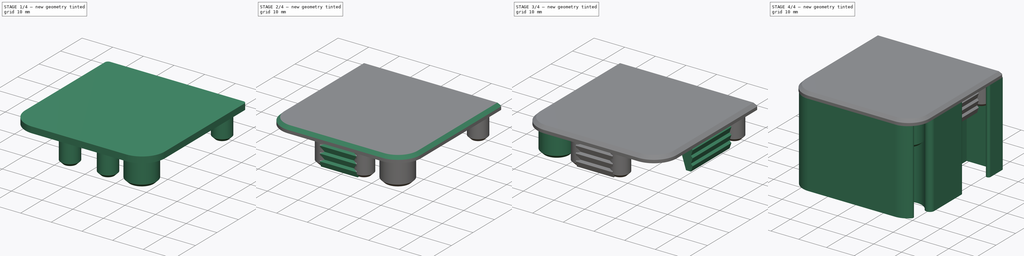
[diagram: build sequence overview — one tinted view per stage of 4, left to right]
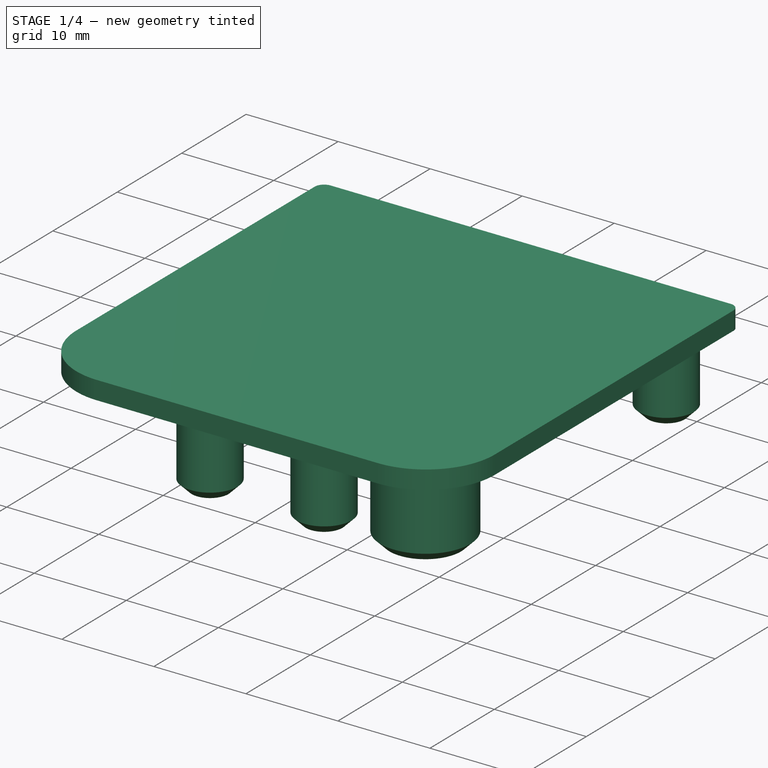
[diagram: stage 1 of 4 — iso view after this stage's code; geometry added in this stage tinted green]
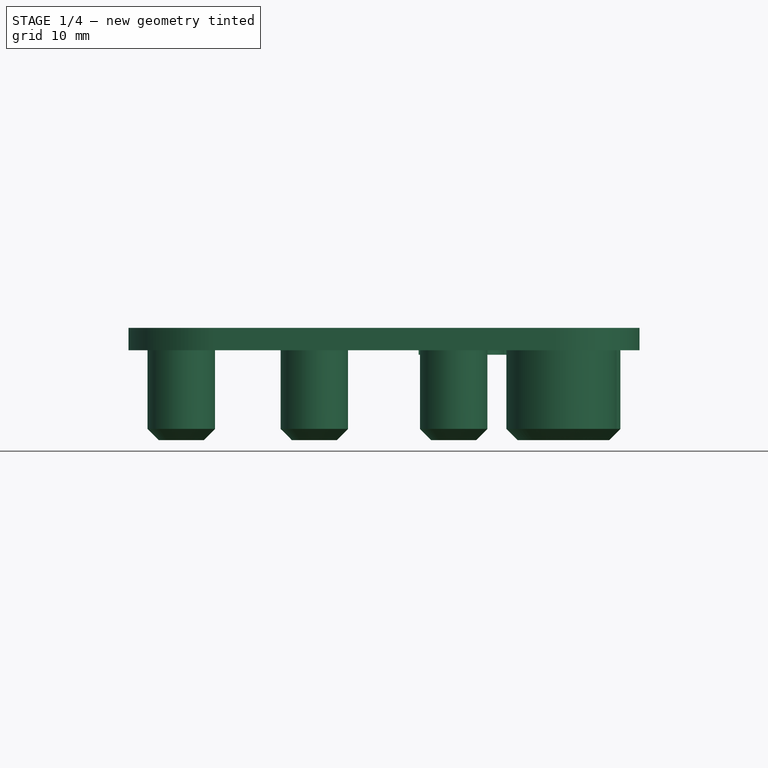
[diagram: stage 1 of 4 — front view after this stage's code; geometry added in this stage tinted green]
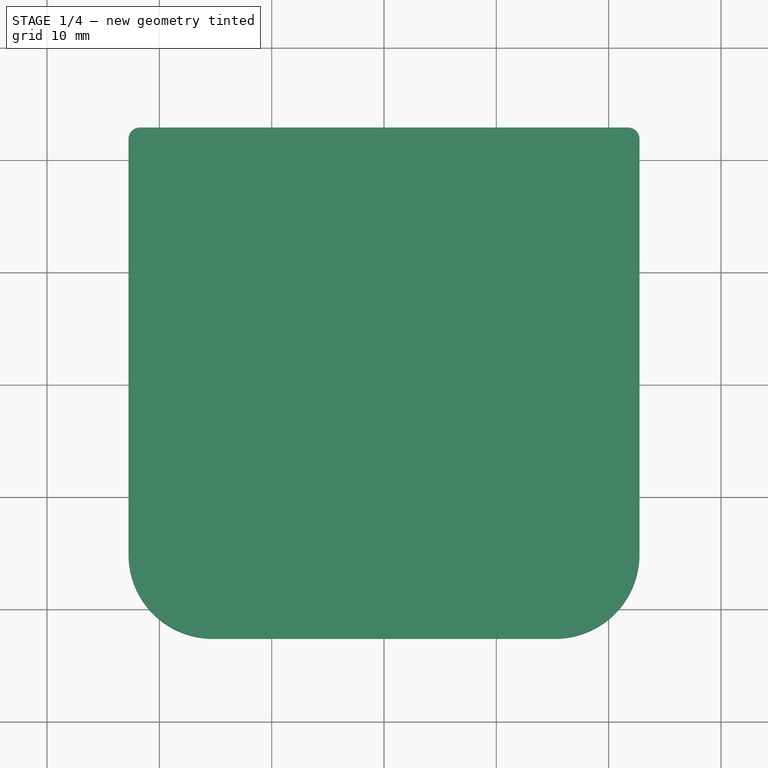
[diagram: stage 1 of 4 — top view after this stage's code; geometry added in this stage tinted green]
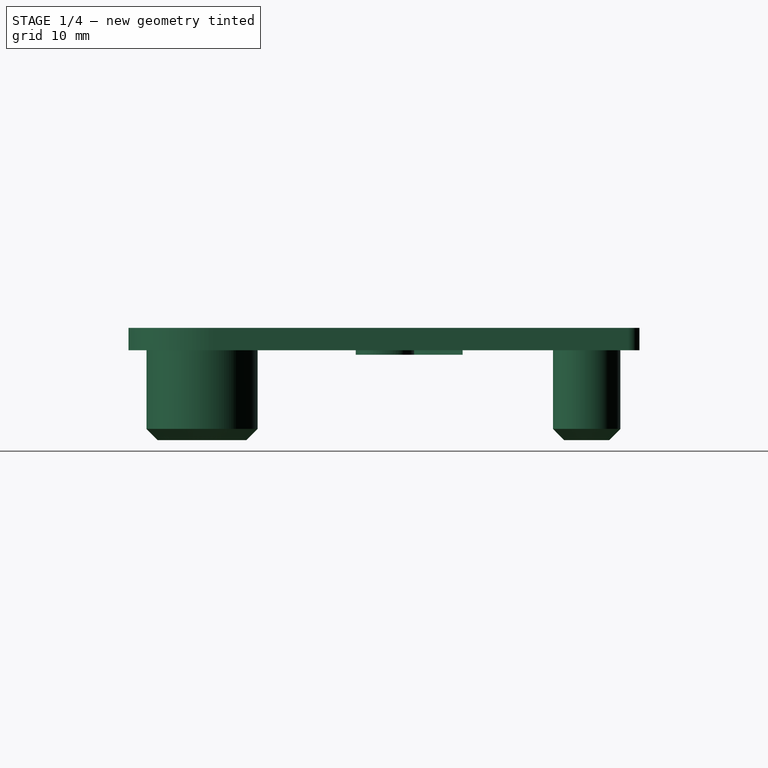
[diagram: stage 1 of 4 — right view after this stage's code; geometry added in this stage tinted green]
FCSTD DOCUMENT  (FreeCAD 0.20R29177 +426 (Git))
Label: Abdeckung
License: Creative Commons Attribution
LicenseURL: http://creativecommons.org/licenses/by/4.0/
objects: Sketcher::SketchObject×8, PartDesign::Pad×7, PartDesign::Body×4, PartDesign::Chamfer×2, PartDesign::FeatureBase×2, Part::Part2DObjectPython×2, Image::ImagePlane×1, Part::Mirroring×1, Part::Extrusion×1, Part::MultiFuse×1
note: 37 computed .brp shape members not serialized (recipe doc carries the construction recipe); baked Part::Feature solids carry a one-line shape summary decoded from their .brp

FEATURE [PartDesign::Body] Body  label="Profile"
  Group = -> [Pad,Sketch]
  Origin = -> Origin
  Tip = -> Pad
FEATURE [Sketcher::SketchObject] Sketch001
  FullyConstrained = true
  MapMode = 5
  Support = -> [XY_Plane001]
  sketch-geometry (8):
    g0: LineSegment StartX=-21.73 StartY=22.75 StartZ=0 EndX=21.73 EndY=22.75 EndZ=0
    g1: LineSegment StartX=22.75 StartY=21.73 StartZ=0 EndX=22.75 EndY=-15.25 EndZ=0
    g2: LineSegment StartX=15.25 StartY=-22.75 StartZ=0 EndX=-15.25 EndY=-22.75 EndZ=0
    g3: LineSegment StartX=-22.75 StartY=-15.25 StartZ=0 EndX=-22.75 EndY=21.73 EndZ=0
    g4: ArcOfCircle CenterX=-21.73 CenterY=21.73 CenterZ=0 NormalX=0 NormalY=0 NormalZ=1 AngleXU=0 Radius=1.02 StartAngle=1.5708 EndAngle=3.14159
    g5: ArcOfCircle CenterX=21.73 CenterY=21.73 CenterZ=0 NormalX=0 NormalY=0 NormalZ=1 AngleXU=0 Radius=1.02 StartAngle=-1.8e-15 EndAngle=1.5708
    g6: ArcOfCircle CenterX=15.25 CenterY=-15.25 CenterZ=0 NormalX=0 NormalY=0 NormalZ=1 AngleXU=0 Radius=7.5 StartAngle=4.71239 EndAngle=6.28319
    g7: ArcOfCircle CenterX=-15.25 CenterY=-15.25 CenterZ=0 NormalX=0 NormalY=0 NormalZ=1 AngleXU=0 Radius=7.5 StartAngle=3.14159 EndAngle=4.71239
  constraints (19):
    c: Horizontal(g0)
    c: Horizontal(g2)
    c: Vertical(g1)
    c: Vertical(g3)
    c: Tangent(g0,g4) = 1.5708
    c: Tangent(g3,g4) = 1.5708
    c: Tangent(g0,g5) = 1.5708
    c: Tangent(g1,g5) = 1.5708
    c: Tangent(g1,g6) = 1.5708
    c: Tangent(g2,g6) = 1.5708
    c: Tangent(g2,g7) = 1.5708
    c: Tangent(g3,g7) = 1.5708
    c: Equal(g7,g6)
    c: Radius(g5) = 1.02
    c: Symmetric(g3,g1,g-2)
    c: DistanceX(g3,g1) = 45.5
    c: DistanceY(g2,g0) = 45.5
    c: DistanceY(g-1,g0) = 22.75
    c: Radius(g6) = 7.5
FEATURE [PartDesign::Pad] Pad001
  Direction = (0,0,1)
  Length = 2
  Length2 = 10
  Profile = -> Sketch001
  ReferenceAxis = -> Sketch001 [N_Axis]
  Type = 0
FEATURE [Sketcher::SketchObject] Sketch002
  ExternalGeometry = -> [Sketch001]
  FullyConstrained = true
  MapMode = 5
  Support = -> [XY_Plane001]
  sketch-geometry (9):
    g0: Circle CenterX=-18.05 CenterY=18.05 CenterZ=0 NormalX=0 NormalY=0 NormalZ=1 AngleXU=0 Radius=3
    g1: Circle CenterX=18.05 CenterY=18.05 CenterZ=0 NormalX=0 NormalY=0 NormalZ=1 AngleXU=0 Radius=3
    g2: Circle CenterX=6.2 CenterY=-18.15 CenterZ=0 NormalX=0 NormalY=0 NormalZ=1 AngleXU=0 Radius=3
    g3: Circle CenterX=-6.2 CenterY=-18.15 CenterZ=0 NormalX=0 NormalY=0 NormalZ=1 AngleXU=0 Radius=3
    g4: LineSegment StartX=-21.25 StartY=21.25 StartZ=0 EndX=21.25 EndY=21.25 EndZ=0
    g5: LineSegment StartX=21.25 StartY=21.25 StartZ=0 EndX=21.25 EndY=-21.25 EndZ=0
    g6: LineSegment StartX=21.25 StartY=-21.25 StartZ=0 EndX=-21.25 EndY=-21.25 EndZ=0
    g7: LineSegment StartX=-21.25 StartY=-21.25 StartZ=0 EndX=-21.25 EndY=21.25 EndZ=0
    g8: Circle CenterX=15.8 CenterY=-16.15 CenterZ=0 NormalX=0 NormalY=0 NormalZ=1 AngleXU=0 Radius=4.9
  constraints (24):
    c: Equal(g2,g3)
    c: Equal(g3,g0)
    c: Equal(g0,g1)
    c: Symmetric(g1,g0,g-2)
    c: Symmetric(g2,g3,g-2)
    c: Coincident(g4,g5)
    c: Coincident(g5,g6)
    c: Coincident(g6,g7)
    c: Coincident(g7,g4)
    c: Horizontal(g4)
    c: Horizontal(g6)
    c: Vertical(g5)
    c: Vertical(g7)
    c: Equal(g7,g4)
    c: Symmetric(g6,g4,g-1)
    c: DistanceY(g4,g-3) = 1.5
    c: Diameter(g1) = 6
    c: DistanceY(g1,g-3) = 4.7
    c: DistanceX(g0,g1) = 36.1
    c: DistanceY(g-6,g2) = 4.6
    c: DistanceX(g3,g2) = 12.4
    c: DistanceX(g-1,g8) = 15.8
    c: DistanceY(g8,g-1) = 16.15
    c: Diameter(g8) = 9.8
FEATURE [PartDesign::Pad] Pad002
  BaseFeature = -> Pad001
  Direction = (0,0,1)
  Length = 8
  Length2 = 10
  Profile = -> Sketch002
  ReferenceAxis = -> Sketch002 [N_Axis]
  Reversed = true
  Type = 0
FEATURE [PartDesign::Chamfer] Chamfer
  Angle = 45
  Base = -> Pad002 [Edge39,Edge37,Edge31,Edge33,Edge35]
  BaseFeature = -> Pad002
  ChamferType = 0
  FlipDirection = false
  Size = 1
  Size2 = 1
  SupportTransform = false
  UseAllEdges = false
FEATURE [Part::Part2DObjectPython] ShapeString001  # Draft 2D object (typed FeaturePython)
  FontFile = <path>
  MakeFace = true
  Placement = pos=(2,7,0) rot=(1,0,0;3.14159rad)
  Size = 10
  String = R
  Tracking = 0
FEATURE [Sketcher::SketchObject] Sketch007
  FullyConstrained = false
  Placement = pos=(0,0,0) rot=(0,0,1;3.14159rad)
  sketch-geometry (27):
    g0: LineSegment StartX=-3.08705 StartY=-7 StartZ=0 EndX=-3.08705 EndY=2.51168 EndZ=0
    g1: LineSegment StartX=-4.98938 StartY=-7 StartZ=0 EndX=-3.08705 EndY=-7 EndZ=0
    g2: LineSegment StartX=-4.98938 StartY=-2.92357 StartZ=0 EndX=-4.98938 EndY=-7 EndZ=0
    g3: LineSegment StartX=-5.38854 StartY=-2.92357 StartZ=0 EndX=-4.98938 EndY=-2.92357 EndZ=0
    g4: BSplineCurve PolesCount=3 KnotsCount=2 Degree=2 IsPeriodic=0
    g5: BSplineCurve PolesCount=3 KnotsCount=2 Degree=2 IsPeriodic=0
    g6: BSplineCurve PolesCount=3 KnotsCount=2 Degree=2 IsPeriodic=0
    g7: LineSegment StartX=-9.31635 StartY=-7 StartZ=0 EndX=-7.99575 EndY=-4.89809 EndZ=0
    g8: LineSegment StartX=-11.5117 StartY=-7 StartZ=0 EndX=-9.31635 EndY=-7 EndZ=0
    g9: LineSegment StartX=-10.3694 StartY=-5.08917 StartZ=0 EndX=-11.5117 EndY=-7 EndZ=0
    g10: BSplineCurve PolesCount=3 KnotsCount=2 Degree=2 IsPeriodic=0
    g11: BSplineCurve PolesCount=3 KnotsCount=2 Degree=2 IsPeriodic=0
    g12: BSplineCurve PolesCount=3 KnotsCount=2 Degree=2 IsPeriodic=0
    g13: BSplineCurve PolesCount=3 KnotsCount=2 Degree=2 IsPeriodic=0
    g14: BSplineCurve PolesCount=3 KnotsCount=2 Degree=2 IsPeriodic=0
    g15: BSplineCurve PolesCount=3 KnotsCount=2 Degree=2 IsPeriodic=0
    g16: BSplineCurve PolesCount=3 KnotsCount=2 Degree=2 IsPeriodic=0
    g17: LineSegment StartX=-3.08705 StartY=2.51168 StartZ=0 EndX=-7.04034 EndY=2.51168 EndZ=0
    g18: LineSegment StartX=-4.98938 StartY=-1.29299 StartZ=0 EndX=-6.38217 EndY=-1.29299 EndZ=0
    g19: LineSegment StartX=-4.98938 StartY=0.881104 StartZ=0 EndX=-4.98938 EndY=-1.29299 EndZ=0
    g20: LineSegment StartX=-6.4586 StartY=0.881104 StartZ=0 EndX=-4.98938 EndY=0.881104 EndZ=0
    g21: BSplineCurve PolesCount=3 KnotsCount=2 Degree=2 IsPeriodic=0
    g22: BSplineCurve PolesCount=3 KnotsCount=2 Degree=2 IsPeriodic=0
    g23: BSplineCurve PolesCount=3 KnotsCount=2 Degree=2 IsPeriodic=0
    g24: BSplineCurve PolesCount=3 KnotsCount=2 Degree=2 IsPeriodic=0
    g25: BSplineCurve PolesCount=3 KnotsCount=2 Degree=2 IsPeriodic=0
    g26: BSplineCurve PolesCount=3 KnotsCount=2 Degree=2 IsPeriodic=0
  constraints (31):
    c: Coincident(g0,g1)
    c: Horizontal(g1)
    c: Coincident(g1,g2)
    c: Coincident(g2,g3)
    c: Horizontal(g3)
    c: Coincident(g3,g4)
    c: Coincident(g4,g5)
    c: Coincident(g5,g6)
    c: Coincident(g6,g7)
    c: Coincident(g7,g8)
    c: Horizontal(g8)
    c: Coincident(g8,g9)
    c: Coincident(g9,g10)
    c: Coincident(g10,g11)
    c: Coincident(g11,g12)
    c: Coincident(g12,g13)
    c: Coincident(g13,g14)
    c: Coincident(g14,g15)
    c: Coincident(g15,g16)
    c: Coincident(g16,g17)
    c: Coincident(g17,g0)
    c: Coincident(g18,g19)
    c: Vertical(g19)
    c: Coincident(g19,g20)
    c: Coincident(g20,g21)
    c: Coincident(g21,g22)
    c: Coincident(g22,g23)
    c: Coincident(g23,g24)
    c: Coincident(g24,g25)
    c: Coincident(g25,g26)
    c: Coincident(g26,g18)
FEATURE [Part::Extrusion] Extrude
  Base = -> Sketch007
  Dir = (0,0,1)
  DirMode = 2
  FaceMakerClass = Part::FaceMakerBullseye
  LengthFwd = 0.4
  LengthRev = 0
  Reversed = true
  Solid = true
  Symmetric = false
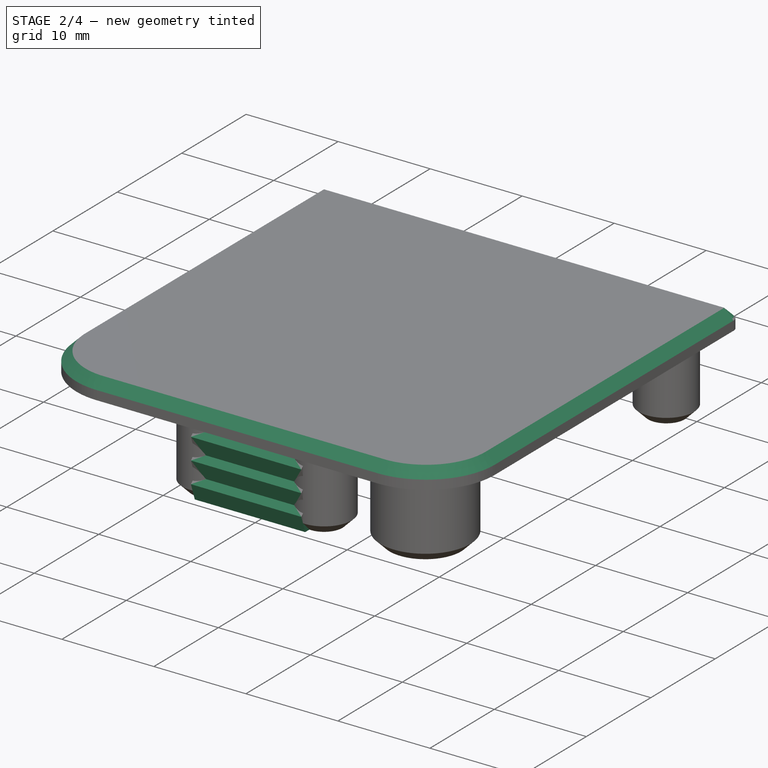
[diagram: stage 2 of 4 — iso view after this stage's code; geometry added in this stage tinted green]
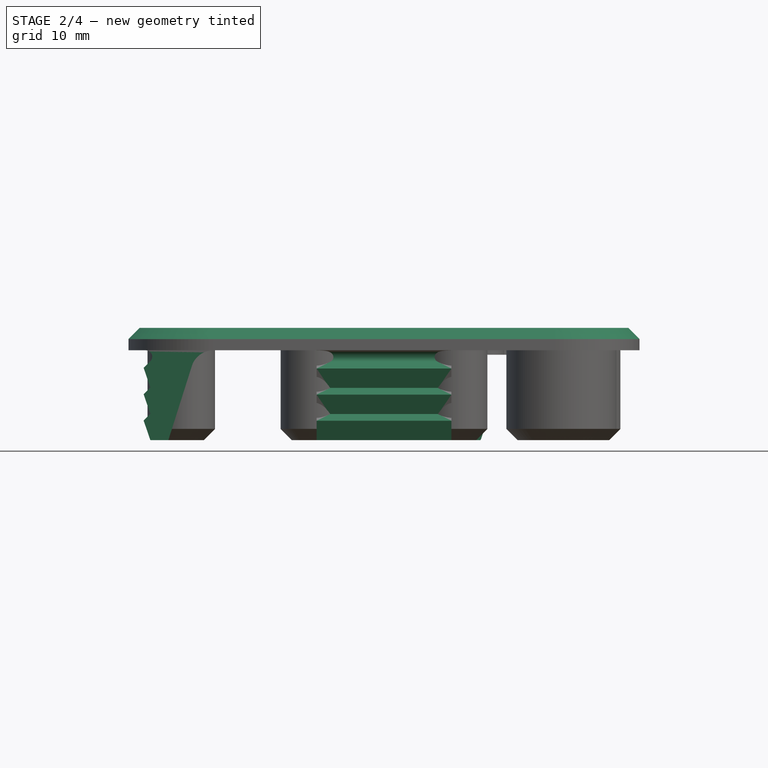
[diagram: stage 2 of 4 — front view after this stage's code; geometry added in this stage tinted green]
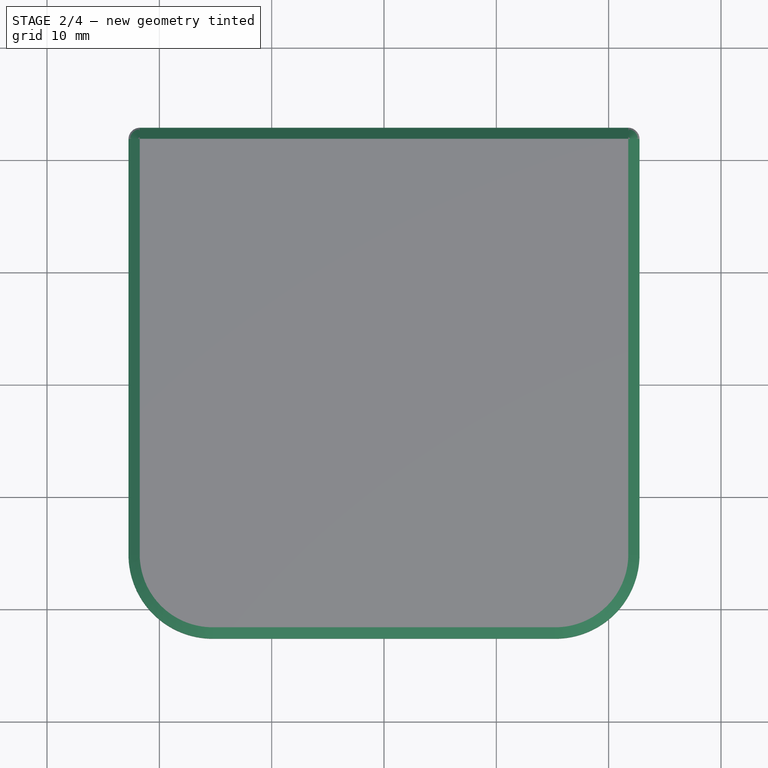
[diagram: stage 2 of 4 — top view after this stage's code; geometry added in this stage tinted green]
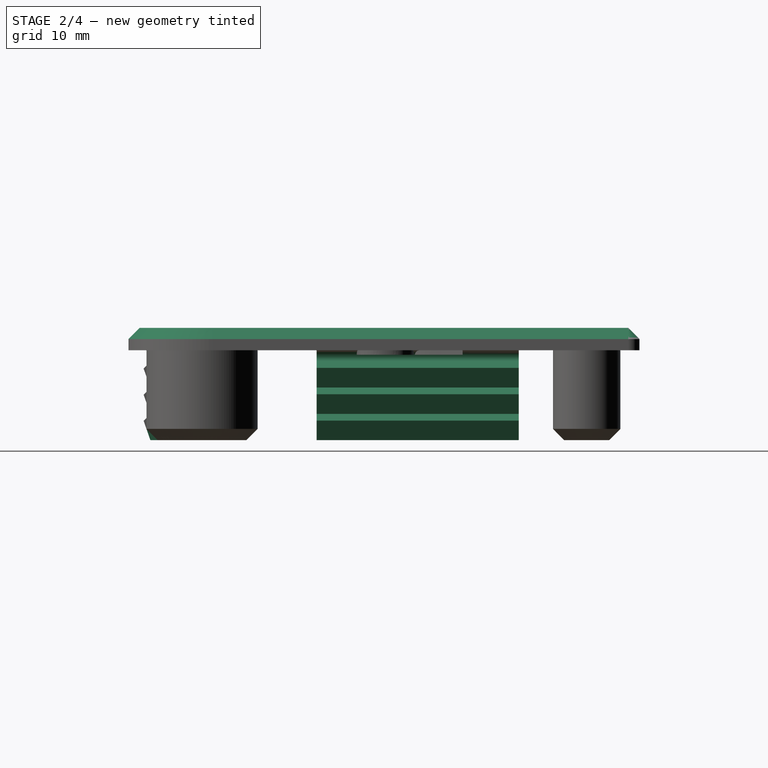
[diagram: stage 2 of 4 — right view after this stage's code; geometry added in this stage tinted green]
FEATURE [PartDesign::Chamfer] Chamfer001
  Angle = 45
  Base = -> Chamfer [Edge26]
  BaseFeature = -> Chamfer
  ChamferType = 0
  FlipDirection = false
  Size = 1
  Size2 = 1
  SupportTransform = false
  UseAllEdges = false
FEATURE [Sketcher::SketchObject] Sketch003
  AttachmentOffset = pos=(0,0,-3) rot=(0,0,1;0rad)
  FullyConstrained = true
  MapMode = 5
  Placement = pos=(0,3,7e-16) rot=(1,0,0;1.5708rad)
  Support = -> [XZ_Plane001]
  expr: Constraints[48] = Constraints[33]
  expr: Constraints[74] = Constraints[31]
  sketch-geometry (33):
    g0: ArcOfCircle CenterX=-21.2 CenterY=-0.565685 CenterZ=0 NormalX=0 NormalY=0 NormalZ=1 AngleXU=0 Radius=0.565685 StartAngle=5.49779 EndAngle=7.85398
    g1: LineSegment StartX=-20.8 StartY=-0.965685 StartZ=0 EndX=-21.4 EndY=-1.56569 EndZ=0
    g2: LineSegment StartX=-21.4 StartY=-1.56569 StartZ=0 EndX=-20.8 EndY=-3.31046 EndZ=0
    g3: LineSegment StartX=-20.8 StartY=-3.31046 StartZ=0 EndX=-21.4 EndY=-3.91046 EndZ=0
    g4: LineSegment StartX=-21.4 StartY=-3.91046 StartZ=0 EndX=-20.8 EndY=-5.65523 EndZ=0
    g5: LineSegment StartX=-20.8 StartY=-5.65523 StartZ=0 EndX=-21.4 EndY=-6.25523 EndZ=0
    g6: LineSegment StartX=-21.4 StartY=-6.25523 StartZ=0 EndX=-20.8 EndY=-8 EndZ=0
    g7: LineSegment StartX=-20.8 StartY=-8 StartZ=0 EndX=-19.2 EndY=-8 EndZ=0
    g8: LineSegment StartX=-19.2 StartY=-8 StartZ=0 EndX=-17.1065 EndY=-1.39566 EndZ=0
    g9: ArcOfCircle CenterX=-15.2 CenterY=-2 CenterZ=0 NormalX=0 NormalY=0 NormalZ=1 AngleXU=0 Radius=2 StartAngle=1.5708 EndAngle=2.83462
    g10: LineSegment StartX=-20.8 StartY=-0.965685 StartZ=0 EndX=-20.8 EndY=-3.31046 EndZ=0
    g11: LineSegment StartX=-20.8 StartY=-3.31046 StartZ=0 EndX=-20.8 EndY=-5.65523 EndZ=0
    g12: LineSegment StartX=-20.8 StartY=-5.65523 StartZ=0 EndX=-20.8 EndY=-8 EndZ=0
    g13: LineSegment StartX=-21.4 StartY=-6.25523 StartZ=0 EndX=-21.4 EndY=-3.91046 EndZ=0
    g14: LineSegment StartX=-21.4 StartY=-1.56569 StartZ=0 EndX=-21.4 EndY=-3.91046 EndZ=0
    g15: LineSegment StartX=-21.2 StartY=0 StartZ=0 EndX=-15.2 EndY=0 EndZ=0
    g16: LineSegment StartX=3 StartY=0 StartZ=0 EndX=9 EndY=0 EndZ=0
    g17: ArcOfCircle CenterX=9 CenterY=-0.565685 CenterZ=0 NormalX=0 NormalY=0 NormalZ=1 AngleXU=0 Radius=0.565685 StartAngle=1.5708 EndAngle=3.92699
    g18: LineSegment StartX=8.6 StartY=-0.965685 StartZ=0 EndX=9.2 EndY=-1.56569 EndZ=0
    g19: LineSegment StartX=9.2 StartY=-1.56569 StartZ=0 EndX=8.6 EndY=-3.31046 EndZ=0
    g20: LineSegment StartX=8.6 StartY=-3.31046 StartZ=0 EndX=9.2 EndY=-3.91046 EndZ=0
    g21: LineSegment StartX=9.2 StartY=-3.91046 StartZ=0 EndX=8.6 EndY=-5.65523 EndZ=0
    g22: LineSegment StartX=8.6 StartY=-5.65523 StartZ=0 EndX=9.2 EndY=-6.25523 EndZ=0
    g23: LineSegment StartX=9.2 StartY=-6.25523 StartZ=0 EndX=8.6 EndY=-8 EndZ=0
    g24: LineSegment StartX=8.6 StartY=-8 StartZ=0 EndX=7 EndY=-8 EndZ=0
    g25: LineSegment StartX=7 StartY=-8 StartZ=0 EndX=4.90651 EndY=-1.39566 EndZ=0
    g26: ArcOfCircle CenterX=3 CenterY=-2 CenterZ=0 NormalX=0 NormalY=0 NormalZ=1 AngleXU=0 Radius=2 StartAngle=0.306968 EndAngle=1.5708
    g27: LineSegment StartX=9.2 StartY=-1.56569 StartZ=0 EndX=9.2 EndY=-3.91046 EndZ=0
    g28: LineSegment StartX=9.2 StartY=-3.91046 StartZ=0 EndX=9.2 EndY=-6.25523 EndZ=0
    g29: LineSegment StartX=8.6 StartY=-5.65523 StartZ=0 EndX=8.6 EndY=-8 EndZ=0
    g30: LineSegment StartX=8.6 StartY=-5.65523 StartZ=0 EndX=8.6 EndY=-3.31046 EndZ=0
    g31: LineSegment StartX=8.6 StartY=-3.31046 StartZ=0 EndX=8.6 EndY=-0.965685 EndZ=0
    g32: GeomPoint X=-20.6343 Y=-0.565685 Z=0
  constraints (85):
    c: Tangent(g0,g1) = 1.5708
    c: Coincident(g1,g2)
    c: Coincident(g2,g3)
    c: Coincident(g3,g4)
    c: Coincident(g4,g5)
    c: Coincident(g5,g6)
    c: Coincident(g6,g7)
    c: Horizontal(g7)
    c: Coincident(g7,g8)
    c: Tangent(g8,g9) = 1.5708
    c: Coincident(g10,g0)
    c: Coincident(g10,g2)
    c: Vertical(g10)
    c: Coincident(g11,g2)
    c: Coincident(g11,g4)
    c: Coincident(g12,g4)
    c: Coincident(g12,g6)
    c: Vertical(g12)
    c: Coincident(g13,g5)
    c: Coincident(g13,g3)
    c: Vertical(g13)
    c: Coincident(g14,g1)
    c: Coincident(g14,g3)
    c: Vertical(g14)
    c: Vertical(g11)
    c: Equal(g14,g10)
    c: Equal(g10,g11)
    c: Equal(g11,g12)
    c: Equal(g12,g13)
    c: Coincident(g15,g0)
    c: Horizontal(g15)
    c: DistanceX(g5,g6) = 0.6
    c: DistanceX(g7,g7) = 1.6
    c: DistanceY(g7,g9) = 8
    c: Tangent(g15,g9) = 1.5708
    c: Angle(g15,g1) = 0.785398
    c: PointOnObject(g9,g-1)
    c: DistanceX(g1,g0) = 0.2
    c: DistanceX(g0,g-1) = 21.2
    c: Coincident(g18,g19)
    c: Coincident(g19,g20)
    c: Coincident(g20,g21)
    c: Coincident(g21,g22)
    c: Coincident(g22,g23)
    c: Coincident(g23,g24)
    c: Horizontal(g24)
    c: Coincident(g24,g25)
    c: Tangent(g25,g26) = -1.5708
    c: DistanceY(g24,g16) = 8
    c: Tangent(g26,g16) = 1.5708
    c: PointOnObject(g16,g-1)
    c: Equal(g9,g26)
    c: DistanceX(g16,g18) = 0.2
    c: Coincident(g18,g27)
    c: Vertical(g27)
    c: Horizontal(g16)
    c: Tangent(g17,g18) = -1.5708
    c: Tangent(g17,g16) = 1.5708
    c: Coincident(g17,g31)
    c: Vertical(g31)
    c: Coincident(g31,g19)
    c: Coincident(g31,g30)
    c: Coincident(g28,g27)
    c: Coincident(g28,g20)
    c: Coincident(g29,g21)
    c: Coincident(g29,g30)
    c: Coincident(g22,g28)
    c: Coincident(g23,g29)
    c: Vertical(g29)
    c: Vertical(g28)
    c: Vertical(g30)
    c: Angle(g18,g-1) = 0.785398
    c: Equal(g0,g17)
    c: Equal(g7,g24)
    c: DistanceX(g23,g22) = 0.6
    c: Equal(g13,g28)
    c: Equal(g28,g27)
    c: Equal(g27,g31)
    c: Equal(g31,g30)
    c: DistanceX(g-1,g16) = 9
    c: PointOnObject(g32,g0)
    c: Horizontal(g32,g0)
    c: Radius(g9) = 2
    c: DistanceX(g15,g15) = 6
    c: Equal(g15,g16)
FEATURE [Sketcher::SketchObject] Sketch004
  FullyConstrained = true
  MapMode = 5
  Placement = pos=(0,0,0) rot=(0.57735,0.57735,0.57735;2.0944rad)
  Support = -> [YZ_Plane001]
  sketch-geometry (17):
    g0: ArcOfCircle CenterX=-21.2243 CenterY=-0.599509 CenterZ=0 NormalX=0 NormalY=0 NormalZ=1 AngleXU=0 Radius=0.6 StartAngle=5.49779 EndAngle=7.81353
    g1: LineSegment StartX=-20.8 StartY=-1.02377 StartZ=0 EndX=-21.4 EndY=-1.62377 EndZ=0
    g2: LineSegment StartX=-21.4 StartY=-1.62377 StartZ=0 EndX=-20.8 EndY=-3.34918 EndZ=0
    g3: LineSegment StartX=-20.8 StartY=-3.34918 StartZ=0 EndX=-21.4 EndY=-3.94918 EndZ=0
    g4: LineSegment StartX=-21.4 StartY=-3.94918 StartZ=0 EndX=-20.8 EndY=-5.67459 EndZ=0
    g5: LineSegment StartX=-20.8 StartY=-5.67459 StartZ=0 EndX=-21.4 EndY=-6.27459 EndZ=0
    g6: LineSegment StartX=-21.4 StartY=-6.27459 StartZ=0 EndX=-20.8 EndY=-8 EndZ=0
    g7: LineSegment StartX=-20.8 StartY=-8 StartZ=0 EndX=-19.2 EndY=-8 EndZ=0
    g8: LineSegment StartX=-19.2 StartY=-8 StartZ=0 EndX=-17.1065 EndY=-1.39566 EndZ=0
    g9: ArcOfCircle CenterX=-15.2 CenterY=-2 CenterZ=0 NormalX=0 NormalY=0 NormalZ=1 AngleXU=0 Radius=2 StartAngle=1.5708 EndAngle=2.83462
    g10: LineSegment StartX=-20.8 StartY=-1.02377 StartZ=0 EndX=-20.8 EndY=-3.34918 EndZ=0
    g11: LineSegment StartX=-20.8 StartY=-3.34918 StartZ=0 EndX=-20.8 EndY=-5.67459 EndZ=0
    g12: LineSegment StartX=-20.8 StartY=-5.67459 StartZ=0 EndX=-20.8 EndY=-8 EndZ=0
    g13: LineSegment StartX=-21.4 StartY=-6.27459 StartZ=0 EndX=-21.4 EndY=-3.94918 EndZ=0
    g14: LineSegment StartX=-21.4 StartY=-1.62377 StartZ=0 EndX=-21.4 EndY=-3.94918 EndZ=0
    g15: LineSegment StartX=-21.2 StartY=0 StartZ=0 EndX=-15.2 EndY=0 EndZ=0
    g16: GeomPoint X=-20.6243 Y=-0.599509 Z=0
  constraints (44):
    c: Tangent(g0,g1) = 1.5708
    c: Coincident(g1,g2)
    c: Coincident(g2,g3)
    c: Coincident(g3,g4)
    c: Coincident(g4,g5)
    c: Coincident(g5,g6)
    c: Coincident(g6,g7)
    c: Horizontal(g7)
    c: Coincident(g7,g8)
    c: Tangent(g8,g9) = 1.5708
    c: Coincident(g10,g0)
    c: Coincident(g10,g2)
    c: Vertical(g10)
    c: Coincident(g11,g2)
    c: Coincident(g11,g4)
    c: Coincident(g12,g4)
    c: Coincident(g12,g6)
    c: Vertical(g12)
    c: Coincident(g13,g5)
    c: Coincident(g13,g3)
    c: Vertical(g13)
    c: Coincident(g14,g1)
    c: Coincident(g14,g3)
    c: Vertical(g14)
    c: Vertical(g11)
    c: Equal(g14,g10)
    c: Equal(g10,g11)
    c: Equal(g11,g12)
    c: Equal(g12,g13)
    c: Coincident(g15,g0)
    c: Horizontal(g15)
    c: DistanceX(g5,g6) = 0.6
    c: DistanceX(g7,g7) = 1.6
    c: DistanceY(g7,g9) = 8
    c: Tangent(g15,g9) = 1.5708
    c: Angle(g15,g1) = 0.785398
    c: PointOnObject(g9,g-1)
    c: DistanceX(g1,g0) = 0.2
    c: DistanceX(g0,g-1) = 21.2
    c: PointOnObject(g16,g0)
    c: Horizontal(g0,g16)
    c: Radius(g0) = 0.6
    c: Radius(g9) = 2
    c: DistanceX(g15,g15) = 6
FEATURE [PartDesign::Pad] Pad003
  BaseFeature = -> Chamfer001
  Direction = (0,-1,-2e-16)
  Length = 18
  Length2 = 10
  Midplane = true
  Profile = -> Sketch003
  ReferenceAxis = -> Sketch003 [N_Axis]
  Type = 0
FEATURE [Sketcher::SketchObject] Sketch005
  AttachmentOffset = pos=(0,0,-5) rot=(0,0,1;0rad)
  FullyConstrained = true
  MapMode = 5
  Placement = pos=(-5,1.1e-15,-1.1e-15) rot=(0.57735,0.57735,0.57735;2.0944rad)
  Support = -> [YZ_Plane001]
  sketch-geometry (16):
    g0: LineSegment StartX=15.2 StartY=0 StartZ=0 EndX=21.2 EndY=0 EndZ=0
    g1: LineSegment StartX=20.8 StartY=-1.02377 StartZ=0 EndX=21.4 EndY=-1.62377 EndZ=0
    g2: LineSegment StartX=21.4 StartY=-1.62377 StartZ=0 EndX=20.8 EndY=-3.34918 EndZ=0
    g3: LineSegment StartX=20.8 StartY=-3.34918 StartZ=0 EndX=21.4 EndY=-3.94918 EndZ=0
    g4: LineSegment StartX=21.4 StartY=-3.94918 StartZ=0 EndX=20.8 EndY=-5.67459 EndZ=0
    g5: LineSegment StartX=20.8 StartY=-5.67459 StartZ=0 EndX=21.4 EndY=-6.27459 EndZ=0
    g6: LineSegment StartX=21.4 StartY=-6.27459 StartZ=0 EndX=20.8 EndY=-8 EndZ=0
    g7: LineSegment StartX=20.8 StartY=-8 StartZ=0 EndX=19.2 EndY=-8 EndZ=0
    g8: LineSegment StartX=19.2 StartY=-8 StartZ=0 EndX=17.1065 EndY=-1.39566 EndZ=0
    g9: ArcOfCircle CenterX=15.2 CenterY=-2 CenterZ=0 NormalX=0 NormalY=0 NormalZ=1 AngleXU=0 Radius=2 StartAngle=0.306968 EndAngle=1.5708
    g10: LineSegment StartX=21.4 StartY=-1.62377 StartZ=0 EndX=21.4 EndY=-3.94918 EndZ=0
    g11: LineSegment StartX=21.4 StartY=-3.94918 StartZ=0 EndX=21.4 EndY=-6.27459 EndZ=0
    g12: LineSegment StartX=20.8 StartY=-5.67459 StartZ=0 EndX=20.8 EndY=-8 EndZ=0
    g13: LineSegment StartX=20.8 StartY=-5.67459 StartZ=0 EndX=20.8 EndY=-3.34918 EndZ=0
    g14: LineSegment StartX=20.8 StartY=-3.34918 StartZ=0 EndX=20.8 EndY=-1.02377 EndZ=0
    g15: ArcOfCircle CenterX=21.2243 CenterY=-0.599509 CenterZ=0 NormalX=0 NormalY=0 NormalZ=1 AngleXU=0 Radius=0.6 StartAngle=1.61125 EndAngle=3.92699
  constraints (42):
    c: Coincident(g1,g2)
    c: Coincident(g2,g3)
    c: Coincident(g3,g4)
    c: Coincident(g4,g5)
    c: Coincident(g5,g6)
    c: Coincident(g6,g7)
    c: Horizontal(g7)
    c: Coincident(g7,g8)
    c: Tangent(g8,g9) = -1.5708
    c: DistanceY(g7,g0) = 8
    c: Tangent(g9,g0) = 1.5708
    c: PointOnObject(g0,g-1)
    c: DistanceX(g0,g1) = 0.2
    c: Coincident(g1,g10)
    c: Vertical(g10)
    c: Horizontal(g0)
    c: Coincident(g14,g1) = -1.5708
    c: Vertical(g14)
    c: Coincident(g14,g2)
    c: Coincident(g14,g13)
    c: Coincident(g11,g10)
    c: Coincident(g11,g3)
    c: Coincident(g12,g4)
    c: Coincident(g12,g13)
    c: Coincident(g5,g11)
    c: Coincident(g6,g12)
    c: Vertical(g12)
    c: Vertical(g11)
    c: Vertical(g13)
    c: Angle(g1,g-1) = 0.785398
    c: DistanceX(g6,g5) = 0.6
    c: Equal(g11,g10)
    c: Equal(g10,g14)
    c: Equal(g14,g13)
    c: DistanceX(g-1,g0) = 21.2
    c: DistanceX(g7,g7) = 1.6
    c: Equal(g11,g12)
    c: Coincident(g15,g0)
    c: Radius(g15) = 0.6
    c: Tangent(g15,g1) = -1.5708
    c: DistanceX(g0,g0) = 6
    c: Radius(g9) = 2
FEATURE [PartDesign::Pad] Pad004
  BaseFeature = -> Pad003
  Direction = (1,-2e-16,3e-16)
  Length = 12
  Length2 = 10
  Midplane = true
  Profile = -> Sketch004
  ReferenceAxis = -> Sketch004 [N_Axis]
  Type = 0
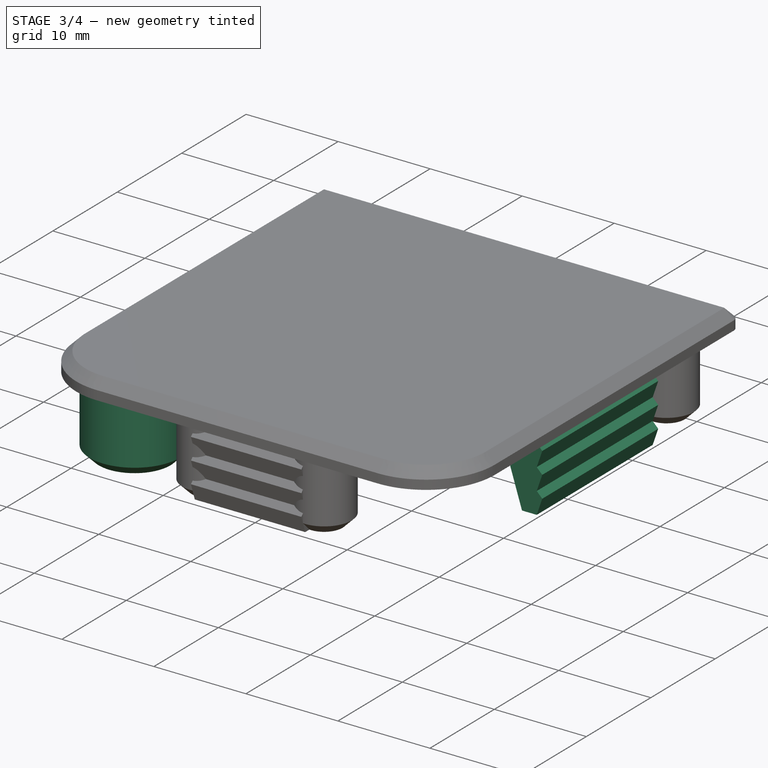
[diagram: stage 3 of 4 — iso view after this stage's code; geometry added in this stage tinted green]
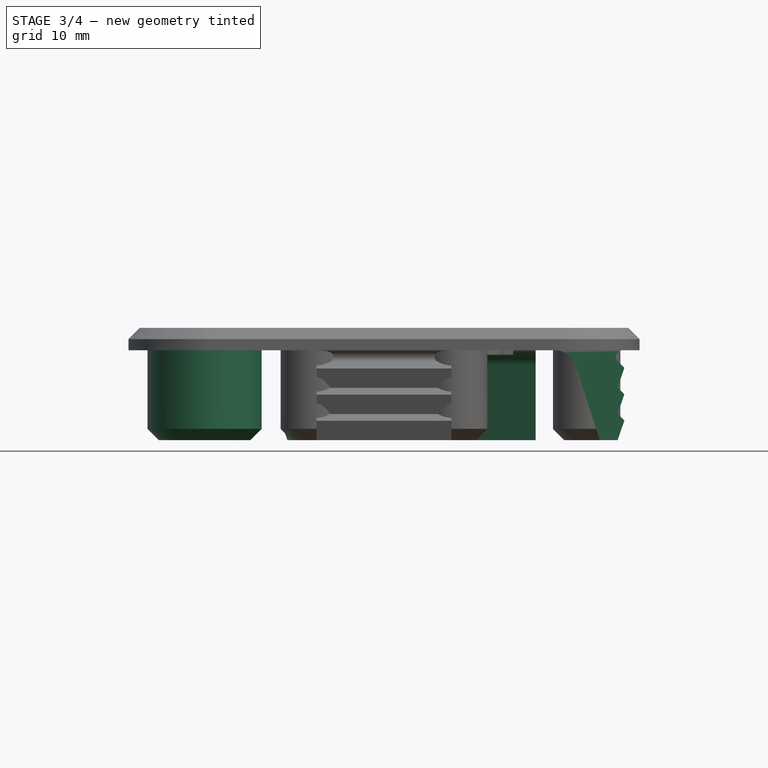
[diagram: stage 3 of 4 — front view after this stage's code; geometry added in this stage tinted green]
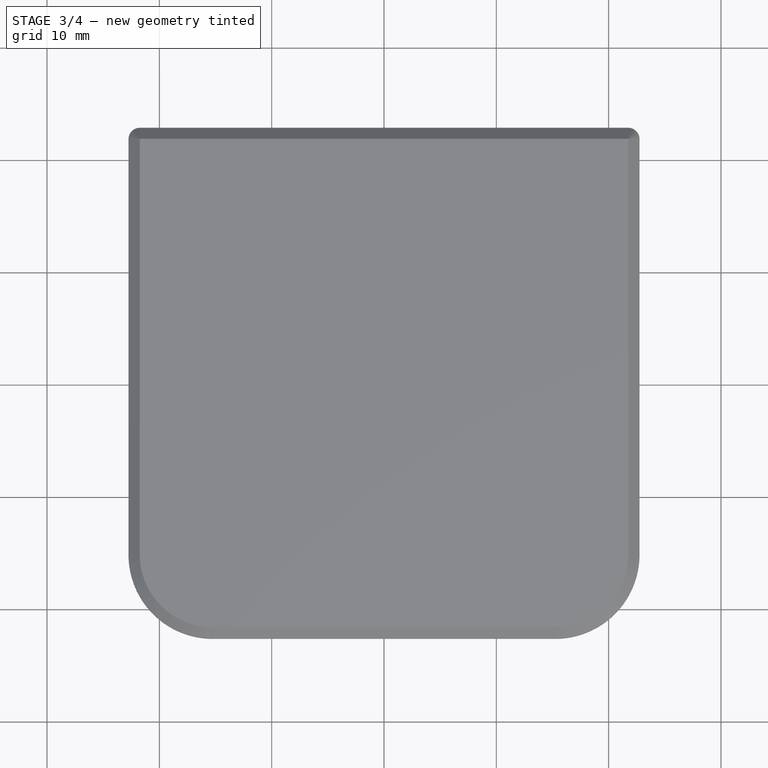
[diagram: stage 3 of 4 — top view after this stage's code; geometry added in this stage tinted green]
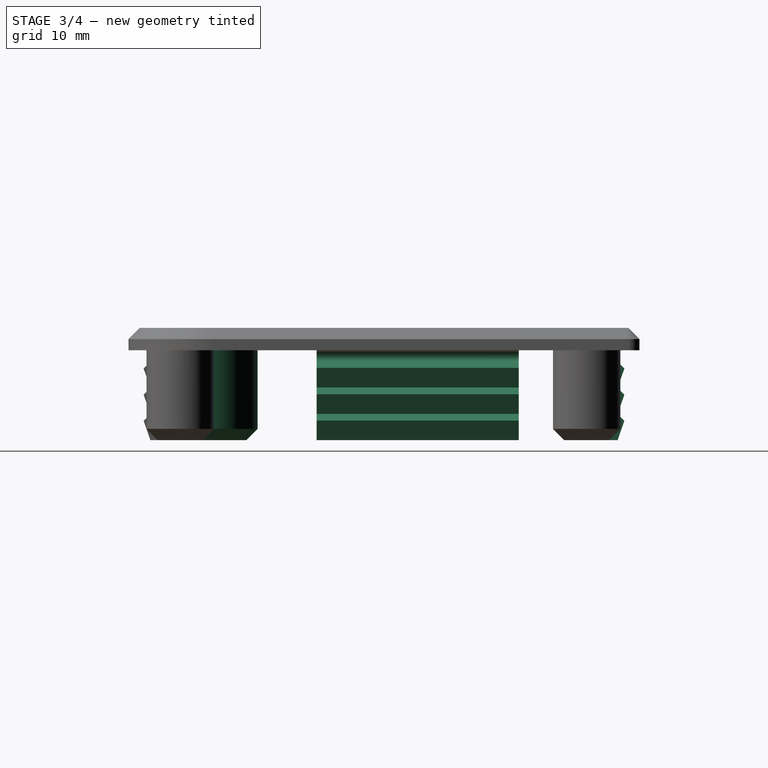
[diagram: stage 3 of 4 — right view after this stage's code; geometry added in this stage tinted green]
FEATURE [PartDesign::Pad] Pad005
  BaseFeature = -> Pad004
  Direction = (1,-2e-16,3e-16)
  Length = 17
  Length2 = 10
  Midplane = true
  Profile = -> Sketch005
  ReferenceAxis = -> Sketch005 [N_Axis]
  Type = 0
FEATURE [PartDesign::Body] Body002  label="Deckel_L"
  Group = -> [Clone,Sketch006,ShapeString,Pad006]
  Origin = -> Origin002
  Tip = -> Pad006
FEATURE [PartDesign::FeatureBase] Clone001
  BaseFeature = -> Body001
FEATURE [PartDesign::Body] Body003
  BaseFeature = -> Body001
  Group = -> [Clone001]
  Origin = -> Origin003
  Tip = -> Clone001
FEATURE [Part::Mirroring] Part__Mirroring  label="Clone001 (Mirror #1)"
  Base = (0,0,0)
  Normal = (1,0,0)
  Source = -> Clone001
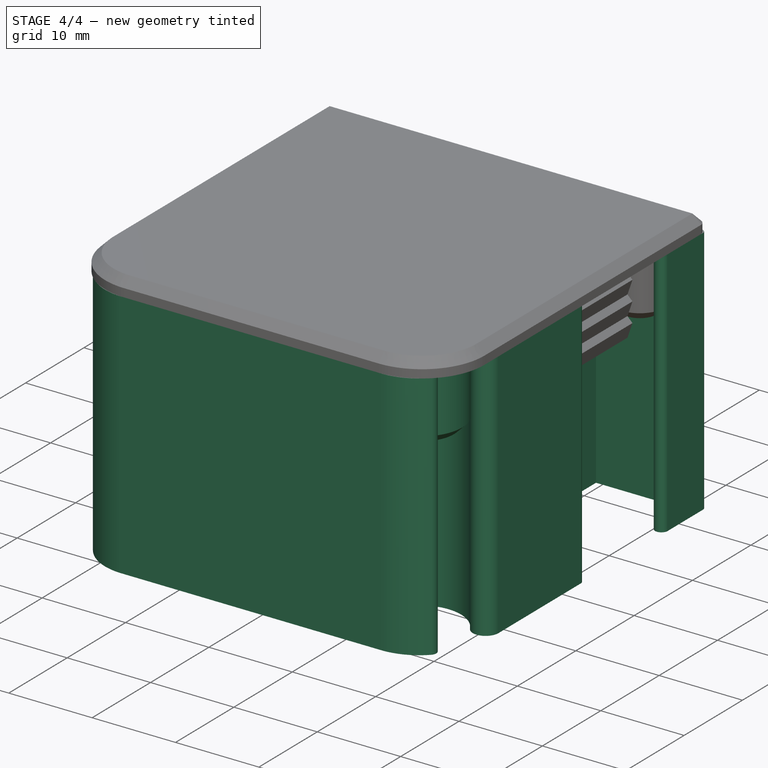
[diagram: stage 4 of 4 — iso view after this stage's code; geometry added in this stage tinted green]
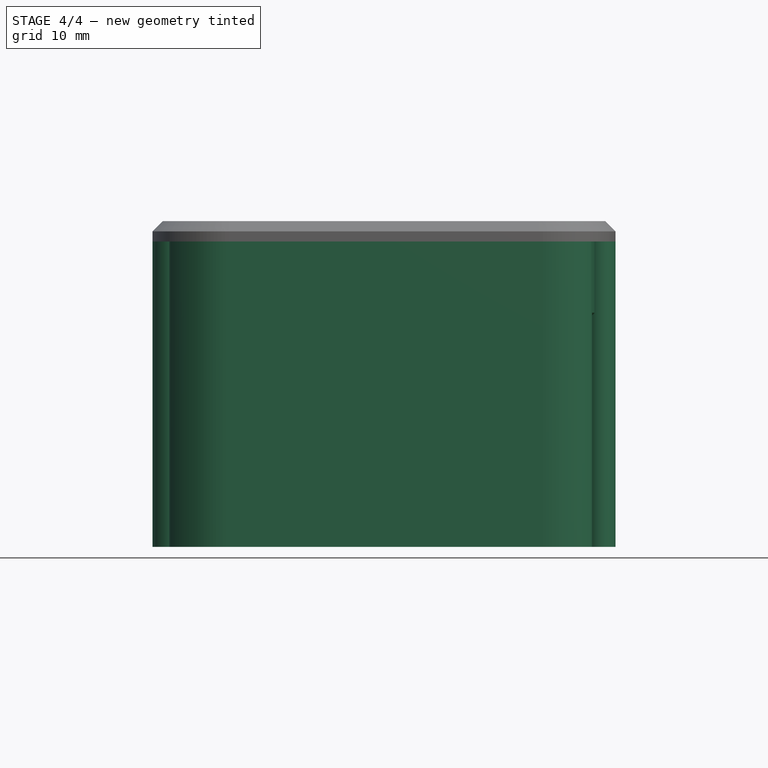
[diagram: stage 4 of 4 — front view after this stage's code; geometry added in this stage tinted green]
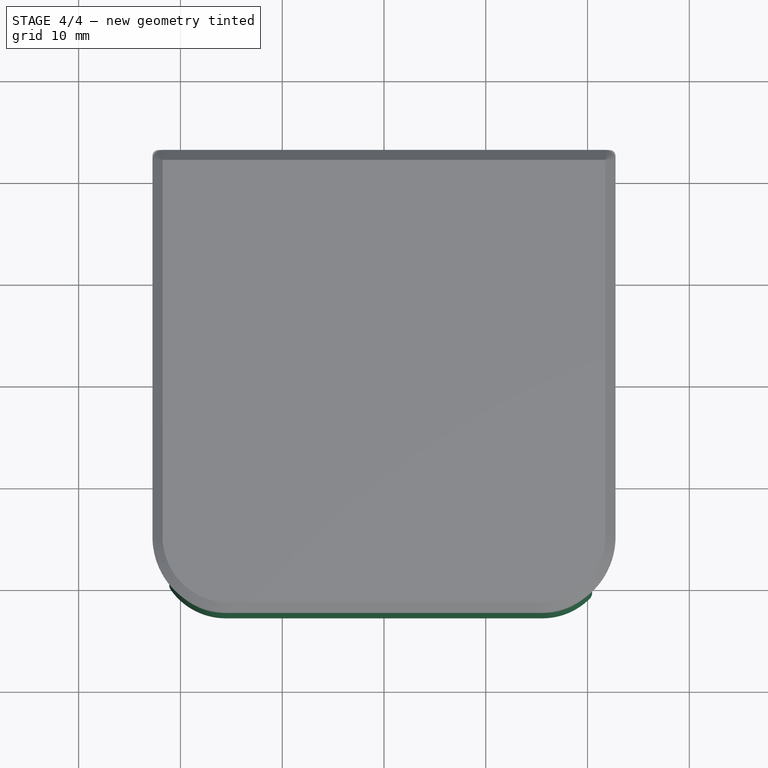
[diagram: stage 4 of 4 — top view after this stage's code; geometry added in this stage tinted green]
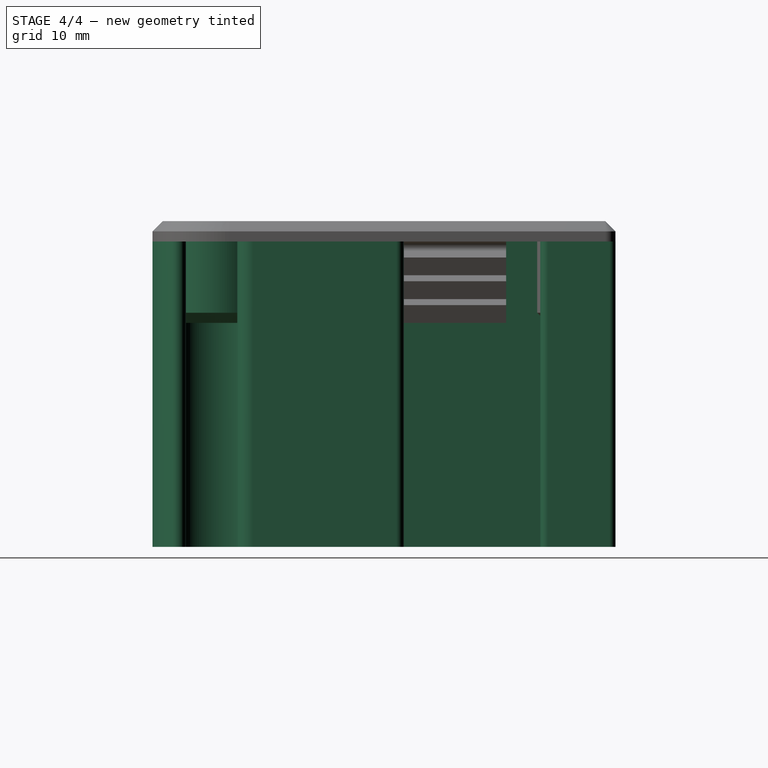
[diagram: stage 4 of 4 — right view after this stage's code; geometry added in this stage tinted green]
FEATURE [Image::ImagePlane] ImagePlane
  Placement = pos=(13,-6,0) rot=(0,0,1;0rad)
  XSize = 138.452
  YSize = 103.839
FEATURE [Sketcher::SketchObject] Sketch
  FullyConstrained = true
  MapMode = 5
  Support = -> [XY_Plane]
  sketch-geometry (62):
    g0: LineSegment StartX=-22.15 StartY=22.75 StartZ=0 EndX=22.15 EndY=22.75 EndZ=0
    g1: LineSegment StartX=22.75 StartY=22.15 StartZ=0 EndX=22.75 EndY=16.1 EndZ=0
    g2: LineSegment StartX=15.55 StartY=-22.75 StartZ=0 EndX=-15.55 EndY=-22.75 EndZ=0
    g3: LineSegment StartX=-22.75 StartY=-11.7096 StartZ=0 EndX=-22.75 EndY=22.15 EndZ=0
    g4: ArcOfCircle CenterX=15.55 CenterY=-16.15 CenterZ=0 NormalX=0 NormalY=0 NormalZ=1 AngleXU=0 Radius=6.6 StartAngle=4.71239 EndAngle=5.49779
    g5: ArcOfCircle CenterX=-15.55 CenterY=-16.15 CenterZ=0 NormalX=0 NormalY=0 NormalZ=1 AngleXU=0 Radius=6.6 StartAngle=3.75246 EndAngle=4.71239
    g6: ArcOfCircle CenterX=-15.55 CenterY=-16.15 CenterZ=0 NormalX=0 NormalY=0 NormalZ=1 AngleXU=0 Radius=5 StartAngle=3.75246 EndAngle=8.72665
    g7: ArcOfCircle CenterX=15.55 CenterY=-16.15 CenterZ=0 NormalX=0 NormalY=0 NormalZ=1 AngleXU=0 Radius=5 StartAngle=0.523599 EndAngle=5.49779
    g8: ArcOfCircle CenterX=-22.15 CenterY=22.15 CenterZ=0 NormalX=0 NormalY=0 NormalZ=1 AngleXU=0 Radius=0.6 StartAngle=1.5708 EndAngle=3.14159
    g9: ArcOfCircle CenterX=22.15 CenterY=22.15 CenterZ=0 NormalX=0 NormalY=0 NormalZ=1 AngleXU=0 Radius=0.6 StartAngle=1e-16 EndAngle=1.5708
    g10: ArcOfCircle CenterX=-15.55 CenterY=-16.15 CenterZ=0 NormalX=0 NormalY=0 NormalZ=1 AngleXU=0 Radius=6.6 StartAngle=5.62572 EndAngle=8.64112
    g11: ArcOfCircle CenterX=15.55 CenterY=-16.15 CenterZ=0 NormalX=0 NormalY=0 NormalZ=1 AngleXU=0 Radius=6.5 StartAngle=3.14159 EndAngle=3.80998
    g12: LineSegment StartX=9.05 StartY=-16.15 StartZ=0 EndX=9.05 EndY=-10.95 EndZ=0
    g13: LineSegment StartX=9.05 StartY=-10.95 StartZ=0 EndX=4.2 EndY=-10.95 EndZ=0
    g14: ArcOfCircle CenterX=4.2 CenterY=-10.2 CenterZ=0 NormalX=0 NormalY=0 NormalZ=1 AngleXU=0 Radius=0.75 StartAngle=1.5708 EndAngle=4.71239
    g15: LineSegment StartX=4.2 StartY=-9.45 StartZ=0 EndX=9.05 EndY=-9.45 EndZ=0
    g16: LineSegment StartX=9.05 StartY=-9.45 StartZ=0 EndX=9.05 EndY=21.25 EndZ=0
    g17: LineSegment StartX=9.05 StartY=21.25 StartZ=0 EndX=-21.25 EndY=21.25 EndZ=0
    g18: LineSegment StartX=-21.25 StartY=21.25 StartZ=0 EndX=-21.25 EndY=-11.0677 EndZ=0
    g19: ArcOfCircle CenterX=-20.65 CenterY=-11.0677 CenterZ=0 NormalX=0 NormalY=0 NormalZ=1 AngleXU=0 Radius=0.6 StartAngle=3.14159 EndAngle=5.49952
    g20: ArcOfCircle CenterX=9.97775 CenterY=-20.55 CenterZ=0 NormalX=0 NormalY=0 NormalZ=1 AngleXU=0 Radius=0.6 StartAngle=4.71239 EndAngle=6.95157
    g21: ArcOfCircle CenterX=-9.85088 CenterY=-20.55 CenterZ=0 NormalX=0 NormalY=0 NormalZ=1 AngleXU=0 Radius=0.6 StartAngle=2.48413 EndAngle=4.71239
    g22: LineSegment StartX=-9.85088 StartY=-21.15 StartZ=0 EndX=9.97775 EndY=-21.15 EndZ=0
    g23: ArcOfCircle CenterX=22 CenterY=1.2 CenterZ=0 NormalX=0 NormalY=0 NormalZ=1 AngleXU=0 Radius=0.75 StartAngle=0 EndAngle=3.14159
    g24: ArcOfCircle CenterX=22 CenterY=16.1 CenterZ=0 NormalX=0 NormalY=0 NormalZ=1 AngleXU=0 Radius=0.75 StartAngle=3.14159 EndAngle=6.28319
    g25: LineSegment StartX=21.25 StartY=16.1 StartZ=0 EndX=21.25 EndY=21.25 EndZ=0
    g26: LineSegment StartX=21.25 StartY=21.25 StartZ=0 EndX=10.55 EndY=21.25 EndZ=0
    g27: LineSegment StartX=10.55 StartY=21.25 StartZ=0 EndX=10.55 EndY=-4.75 EndZ=0
    g28: LineSegment StartX=10.55 StartY=-4.75 StartZ=0 EndX=12.25 EndY=-4.75 EndZ=0
    g29: ArcOfCircle CenterX=12.25 CenterY=-5.4 CenterZ=0 NormalX=0 NormalY=0 NormalZ=1 AngleXU=0 Radius=0.65 StartAngle=4.71239 EndAngle=7.85398
    g30: LineSegment StartX=12.25 StartY=-6.05 StartZ=0 EndX=10.55 EndY=-6.05 EndZ=0
    g31: LineSegment StartX=10.55 StartY=-6.05 StartZ=0 EndX=10.55 EndY=-10.4509 EndZ=0
    g32: ArcOfCircle CenterX=11.15 CenterY=-10.4509 CenterZ=0 NormalX=0 NormalY=0 NormalZ=1 AngleXU=0 Radius=0.6 StartAngle=3.14159 EndAngle=5.36985
    g33: ArcOfCircle CenterX=15.55 CenterY=-16.15 CenterZ=0 NormalX=0 NormalY=0 NormalZ=1 AngleXU=0 Radius=6.6 StartAngle=0.783662 EndAngle=2.22826
    g34: ArcOfCircle CenterX=20.65 CenterY=-11.0677 CenterZ=0 NormalX=0 NormalY=0 NormalZ=1 AngleXU=0 Radius=0.6 StartAngle=3.92525 EndAngle=6.28319
    g35: LineSegment StartX=21.25 StartY=-11.0677 StartZ=0 EndX=21.25 EndY=-6.05 EndZ=0
    g36: LineSegment StartX=21.25 StartY=-6.05 StartZ=0 EndX=19.55 EndY=-6.05 EndZ=0
    g37: ArcOfCircle CenterX=19.55 CenterY=-5.4 CenterZ=0 NormalX=0 NormalY=0 NormalZ=1 AngleXU=0 Radius=0.65 StartAngle=1.5708 EndAngle=4.71239
    g38: LineSegment StartX=19.55 StartY=-4.75 StartZ=0 EndX=21.25 EndY=-4.75 EndZ=0
    g39: LineSegment StartX=21.25 StartY=-4.75 StartZ=0 EndX=21.25 EndY=1.2 EndZ=0
    g40: GeomPoint X=22 Y=15.35 Z=0
    g41: GeomPoint X=22 Y=1.95 Z=0
    g42: GeomPoint X=12.9 Y=-5.4 Z=0
    g43: GeomPoint X=18.9 Y=-5.4 Z=0
    g44: LineSegment StartX=22.75 StartY=1.2 StartZ=0 EndX=22.75 EndY=-12.881 EndZ=0
    g45: GeomPoint X=3.45 Y=-10.2 Z=0
    g46: LineSegment StartX=-21.25 StartY=21.25 StartZ=0 EndX=-22.75 EndY=21.25 EndZ=0
    g47: LineSegment StartX=-21.25 StartY=21.25 StartZ=0 EndX=-21.25 EndY=22.75 EndZ=0
    g48: LineSegment StartX=9.05 StartY=21.25 StartZ=0 EndX=10.55 EndY=21.25 EndZ=0
    g49: LineSegment StartX=21.25 StartY=21.25 StartZ=0 EndX=22.75 EndY=21.25 EndZ=0
    g50: ArcOfCircle CenterX=21.212 CenterY=-12.881 CenterZ=0 NormalX=0 NormalY=0 NormalZ=1 AngleXU=0 Radius=1.53796 StartAngle=3.66519 EndAngle=6.28319
    g51: ArcOfCircle CenterX=19.6512 CenterY=-20.2512 CenterZ=0 NormalX=0 NormalY=0 NormalZ=1 AngleXU=0 Radius=0.8 StartAngle=5.49779 EndAngle=8.63938
    g52: ArcOfCircle CenterX=-20.8419 CenterY=-11.7096 CenterZ=0 NormalX=0 NormalY=0 NormalZ=1 AngleXU=0 Radius=1.90809 StartAngle=3.14159 EndAngle=5.58505
    g53: ArcOfCircle CenterX=-20.3011 CenterY=-19.4767 CenterZ=0 NormalX=0 NormalY=0 NormalZ=1 AngleXU=0 Radius=0.8 StartAngle=0.610865 EndAngle=3.75246
    g54: GeomPoint X=10.55 Y=-16.15 Z=0
    g55: GeomPoint X=15.55 Y=-21.15 Z=0
    g56: LineSegment StartX=15.55 StartY=-16.15 StartZ=0 EndX=19.6512 EndY=-20.2512 EndZ=0
    g57: LineSegment StartX=15.55 StartY=-16.15 StartZ=0 EndX=15.55 EndY=-21.15 EndZ=0
    g58: LineSegment StartX=15.55 StartY=-16.15 StartZ=0 EndX=21.212 EndY=-12.881 EndZ=0
    g59: LineSegment StartX=-20.8419 StartY=-11.7096 StartZ=0 EndX=-15.55 EndY=-16.15 EndZ=0
    g60: LineSegment StartX=-15.55 StartY=-16.15 StartZ=0 EndX=-20.3011 EndY=-19.4767 EndZ=0
    g61: LineSegment StartX=-15.55 StartY=-16.15 StartZ=0 EndX=-15.55 EndY=-22.75 EndZ=0
  constraints (153):
    c: Horizontal(g0)
    c: Horizontal(g2)
    c: Vertical(g1)
    c: Vertical(g3)
    c: Tangent(g2,g4) = 1.5708
    c: Tangent(g2,g5) = 1.5708
    c: Coincident(g6,g5)
    c: Coincident(g7,g4)
    c: Equal(g6,g7)
    c: Diameter(g7) = 10
    c: Tangent(g0,g8) = 1.5708
    c: Tangent(g3,g8) = 1.5708
    c: Tangent(g0,g9) = 1.5708
    c: Tangent(g1,g9) = 1.5708
    c: Radius(g9) = 0.6
    c: DistanceX(g3,g1) = 45.5
    c: Symmetric(g1,g3,g-2)
    c: DistanceY(g2,g0) = 45.5
    c: DistanceY(g-1,g0) = 22.75
    c: Coincident(g11,g4)
    c: Tangent(g11,g12) = 1.5708
    c: Coincident(g12,g13)
    c: Horizontal(g13)
    c: Tangent(g13,g14) = 1.5708
    c: Tangent(g14,g15) = 1.5708
    c: Coincident(g15,g16)
    c: Vertical(g16)
    c: Coincident(g16,g17)
    c: Horizontal(g17)
    c: Coincident(g17,g18)
    c: Vertical(g18)
    c: Tangent(g18,g19) = -1.5708
    c: Tangent(g19,g10) = 1.5708
    c: Horizontal(g15)
    c: Vertical(g12)
    c: Vertical(g12,g15)
    c: Tangent(g20,g11) = 1.5708
    c: Tangent(g22,g20) = -1.5708
    c: Tangent(g22,g21) = -1.5708
    c: Tangent(g21,g10) = 1.5708
    c: Horizontal(g22)
    c: Equal(g9,g19)
    c: Equal(g19,g21)
    c: Equal(g21,g20)
    c: Tangent(g24,g25) = 1.5708
    c: Coincident(g25,g26)
    c: Horizontal(g26)
    c: Coincident(g26,g27)
    c: Vertical(g27)
    c: Coincident(g27,g28)
    c: Tangent(g28,g29) = 1.5708
    c: Tangent(g29,g30) = 1.5708
    c: Coincident(g30,g31)
    c: Vertical(g31)
    c: Tangent(g31,g32) = -1.5708
    c: Tangent(g32,g33) = 1.5708
    c: Tangent(g33,g34) = 1.5708
    c: Tangent(g34,g35) = -1.5708
    c: Coincident(g35,g36)
    c: Horizontal(g36)
    c: Tangent(g36,g37) = 1.5708
    c: Tangent(g37,g38) = 1.5708
    c: Coincident(g38,g39)
    c: Vertical(g39)
    c: Horizontal(g38)
    c: Horizontal(g30)
    c: Horizontal(g28)
    c: Vertical(g30,g27)
    c: Vertical(g35)
    c: Vertical(g35,g38)
    c: Tangent(g39,g23) = 1.5708
    c: Vertical(g25)
    c: Horizontal(g26,g16)
    c: Equal(g24,g23)
    c: PointOnObject(g40,g24)
    c: PointOnObject(g41,g23)
    c: Vertical(g23,g41)
    c: Vertical(g40,g24)
    c: PointOnObject(g42,g29)
    c: PointOnObject(g43,g37)
    c: Horizontal(g43,g37)
    c: Horizontal(g29,g42)
    c: Horizontal(g29,g37)
    c: DistanceX(g42,g43) = 6
    c: DistanceX(g17,g17) = 30.3
    c: DistanceY(g2,g20) = 1.6
    c: Equal(g10,g5)
    c: Coincident(g5,g10)
    c: Equal(g4,g33)
    c: DistanceY(g41,g40) = 13.4
    c: DistanceY(g40,g0) = 7.4
    c: Tangent(g1,g24) = 1.5708
    c: Tangent(g44,g23) = 1.5708
    c: Vertical(g44)
    c: Vertical(g23,g1)
    c: Coincident(g33,g4)
    c: Equal(g34,g32)
    c: Equal(g20,g32)
    c: Equal(g28,g38)
    c: PointOnObject(g45,g14)
    c: Horizontal(g45,g14)
    c: Coincident(g46,g17)
    c: PointOnObject(g46,g3)
    c: Horizontal(g46)
    c: Coincident(g47,g17)
    c: PointOnObject(g47,g0)
    c: Vertical(g47)
    c: Coincident(g48,g16)
    c: Coincident(g48,g26)
    c: Equal(g37,g29)
    c: Radius(g29) = 0.65
    c: DistanceY(g27,g27) = 26
    c: Equal(g46,g47)
    c: Equal(g47,g48)
    c: DistanceY(g46,g0) = 1.5
    c: DistanceY(g14,g16) = 30.7
    c: Coincident(g49,g25)
    c: PointOnObject(g49,g1)
    c: Horizontal(g49)
    c: Equal(g48,g49)
    c: Tangent(g4,g51) = -1.5708
    c: Tangent(g7,g51) = 1.5708
    c: Tangent(g7,g50) = 1.5708
    c: Tangent(g44,g50) = 1.5708
    c: Symmetric(g4,g5,g-2)
    c: Tangent(g3,g52) = 1.5708
    c: Tangent(g5,g53) = -1.5708
    c: Tangent(g6,g52) = 1.5708
    c: Tangent(g6,g53) = 1.5708
    c: PointOnObject(g54,g7)
    c: Horizontal(g54,g4)
    c: PointOnObject(g54,g31)
    c: PointOnObject(g55,g7)
    c: Vertical(g55,g4)
    c: PointOnObject(g55,g22)
    c: Coincident(g56,g4)
    c: Coincident(g56,g51)
    c: Coincident(g57,g4)
    c: Coincident(g57,g55)
    c: Angle(g57,g56) = 0.785398
    c: Coincident(g58,g4)
    c: Coincident(g58,g50)
    c: Angle(g56,g58) = 1.309
    c: Coincident(g59,g52)
    c: Coincident(g59,g5)
    c: Coincident(g60,g5)
    c: Coincident(g60,g53)
    c: Coincident(g61,g5)
    c: Coincident(g61,g2)
    c: Angle(g59,g60) = 1.309
    c: Angle(g60,g61) = 0.959931
    c: DistanceX(g45,g11) = 5.6
    c: Radius(g14) = 0.75
FEATURE [PartDesign::Pad] Pad
  Direction = (0,0,1)
  Length = 30
  Length2 = 10
  Profile = -> Sketch
  ReferenceAxis = -> Sketch [N_Axis]
  Reversed = true
  Type = 0
FEATURE [PartDesign::Body] Body001  label="Deckel_base"
  Group = -> [Sketch001,Pad001,Sketch002,Pad002,Chamfer,Chamfer001,Sketch003,Sketch004,Pad003,Sketch005,Pad004,Pad005]
  Origin = -> Origin001
  Tip = -> Pad005
FEATURE [PartDesign::FeatureBase] Clone
  BaseFeature = -> Body001
FEATURE [Part::Part2DObjectPython] ShapeString  # Draft 2D object (typed FeaturePython)
  FontFile = <path>
  MakeFace = true
  Placement = pos=(-9.25,4.789,-6e-16) rot=(1,0,0;3.14159rad)
  Size = 10
  String = L
  Tracking = 0
FEATURE [Sketcher::SketchObject] Sketch006
  FullyConstrained = false
  Placement = pos=(0,0,0) rot=(0,0,1;3.14159rad)
  sketch-geometry (6):
    g0: LineSegment StartX=8.16295 StartY=-4.789 StartZ=0 EndX=8.16295 EndY=4.72268 EndZ=0
    g1: LineSegment StartX=1.64066 StartY=-4.789 StartZ=0 EndX=8.16295 EndY=-4.789 EndZ=0
    g2: LineSegment StartX=1.64066 StartY=-3.15843 StartZ=0 EndX=1.64066 EndY=-4.789 EndZ=0
    g3: LineSegment StartX=6.26062 StartY=-3.15843 StartZ=0 EndX=1.64066 EndY=-3.15843 EndZ=0
    g4: LineSegment StartX=6.26062 StartY=4.72268 StartZ=0 EndX=6.26062 EndY=-3.15843 EndZ=0
    g5: LineSegment StartX=8.16295 StartY=4.72268 StartZ=0 EndX=6.26062 EndY=4.72268 EndZ=0
  constraints (7):
    c: Coincident(g0,g1)
    c: Coincident(g1,g2)
    c: Coincident(g2,g3)
    c: Coincident(g3,g4)
    c: Coincident(g4,g5)
    c: Horizontal(g5)
    c: Coincident(g5,g0)
FEATURE [PartDesign::Pad] Pad006
  BaseFeature = -> Clone
  Direction = (0,0,1)
  Length = 0.4
  Length2 = 10
  Profile = -> Sketch006
  ReferenceAxis = -> Sketch006 [N_Axis]
  Reversed = true
  Type = 0
FEATURE [Part::MultiFuse] Fusion  label="Deckel_R"
  Shapes = -> [Extrude,Part__Mirroring]
note: 2 file-system paths scrubbed to <path> (originals preserved in the JSON sidecar)
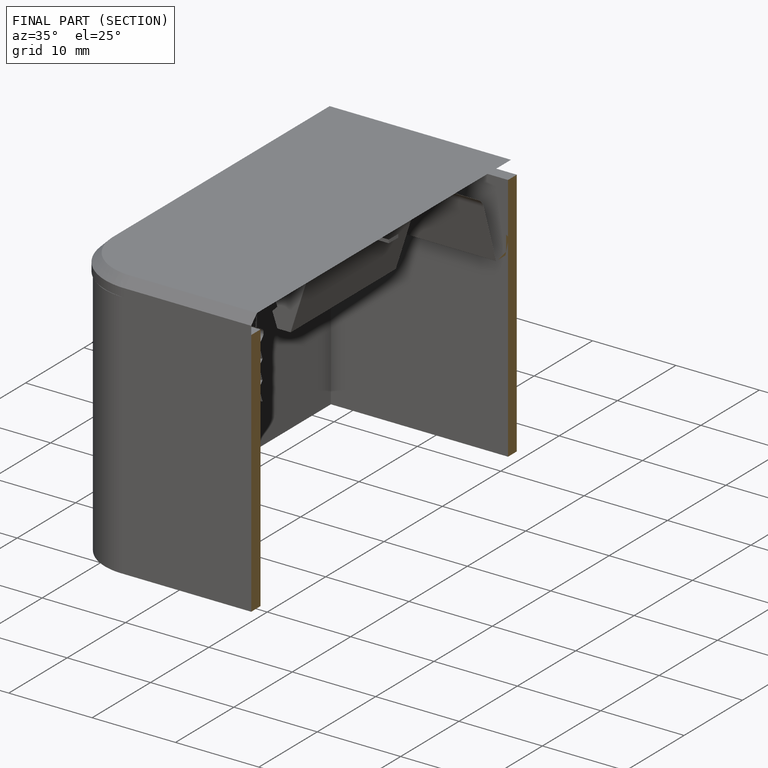
[diagram: finished part — half-section view (interior)]
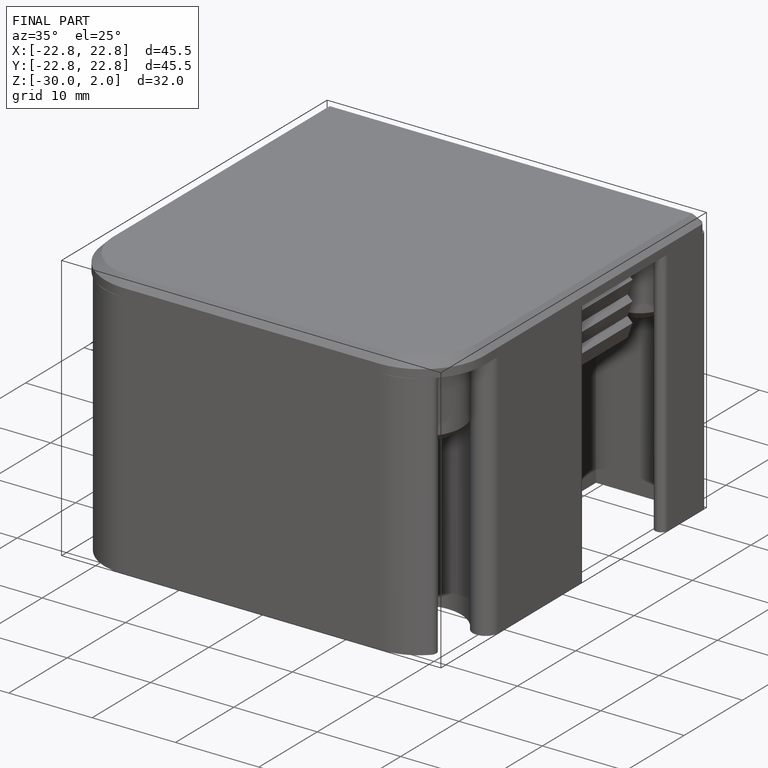
[diagram: finished part — iso view with bounding-box wireframe]
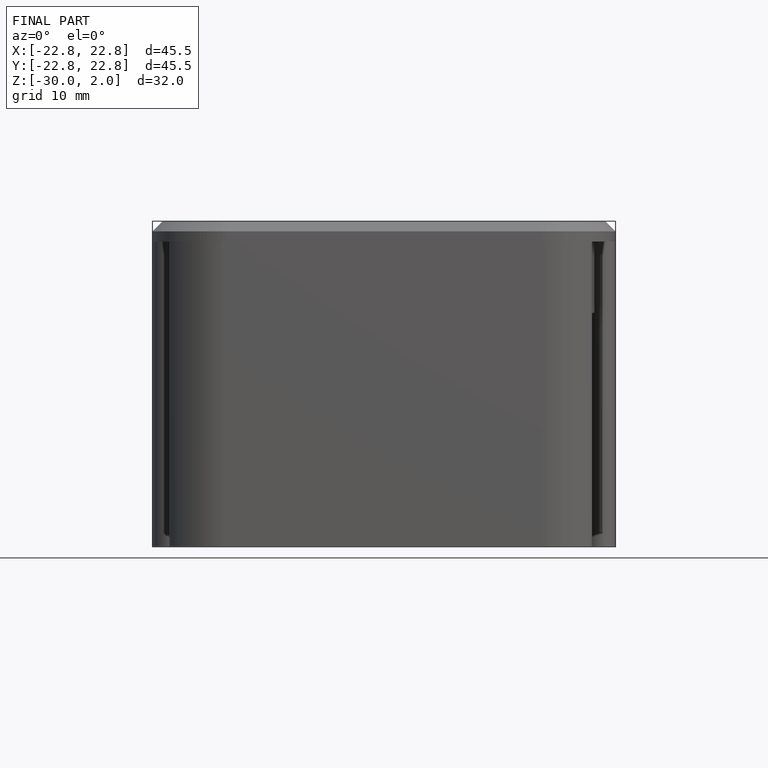
[diagram: finished part — front view with bounding-box wireframe]
